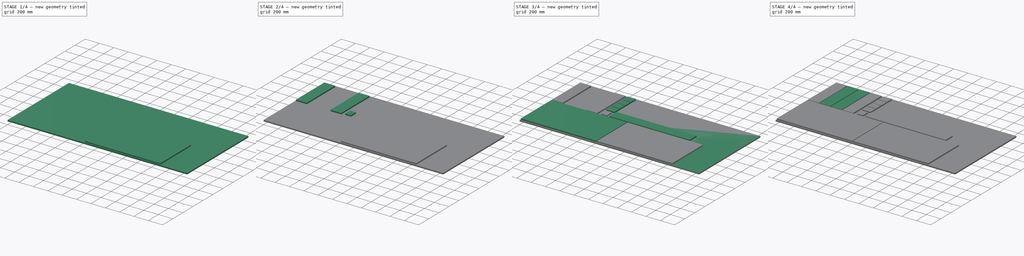
[diagram: build sequence overview — one tinted view per stage of 4, left to right]
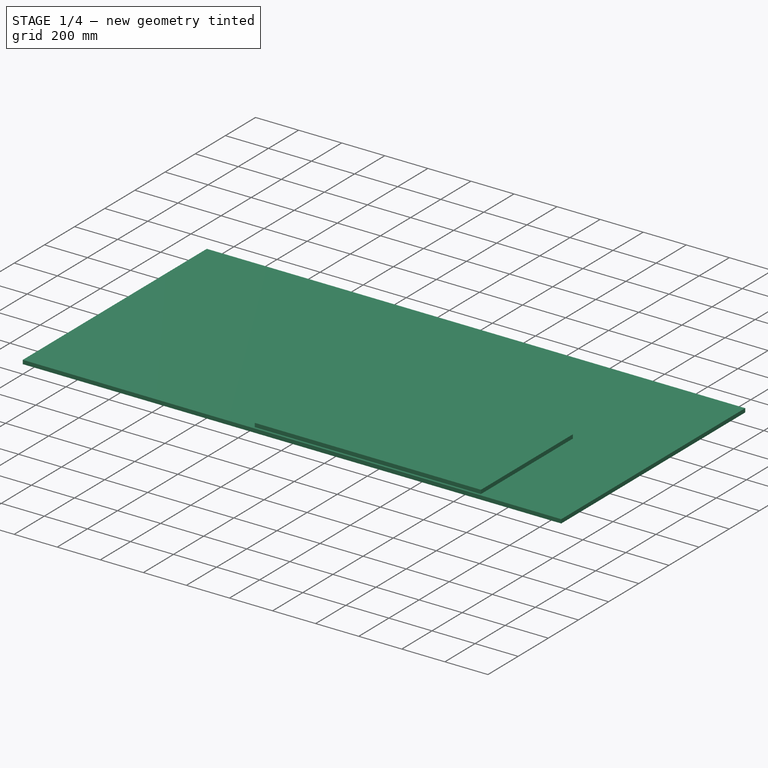
[diagram: stage 1 of 4 — iso view after this stage's code; geometry added in this stage tinted green]
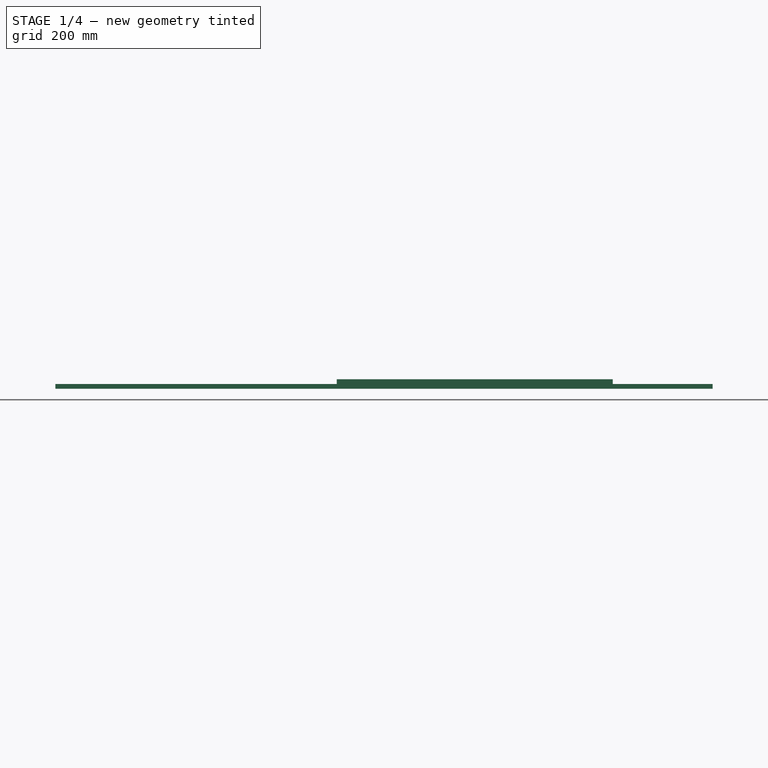
[diagram: stage 1 of 4 — front view after this stage's code; geometry added in this stage tinted green]
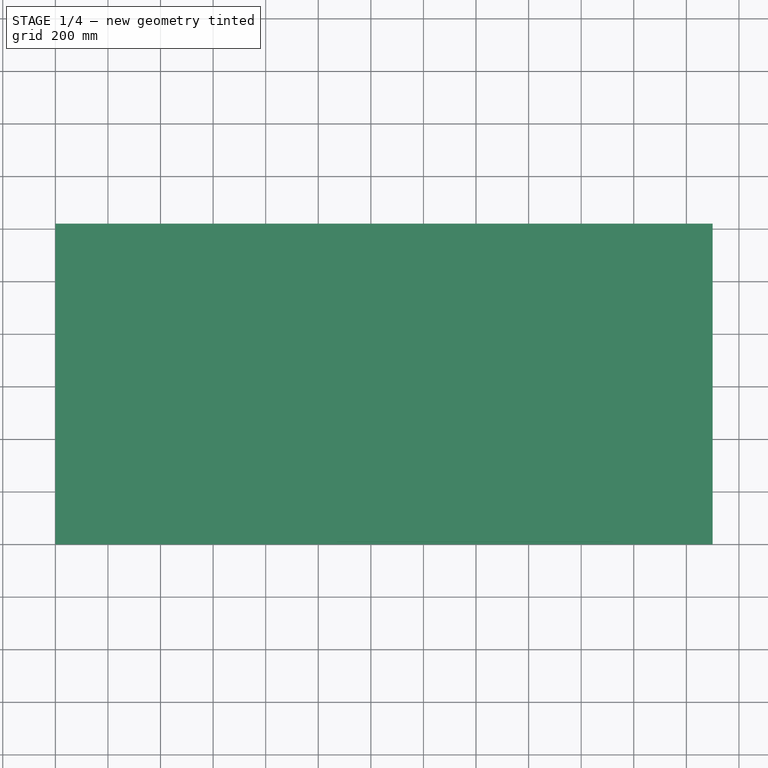
[diagram: stage 1 of 4 — top view after this stage's code; geometry added in this stage tinted green]
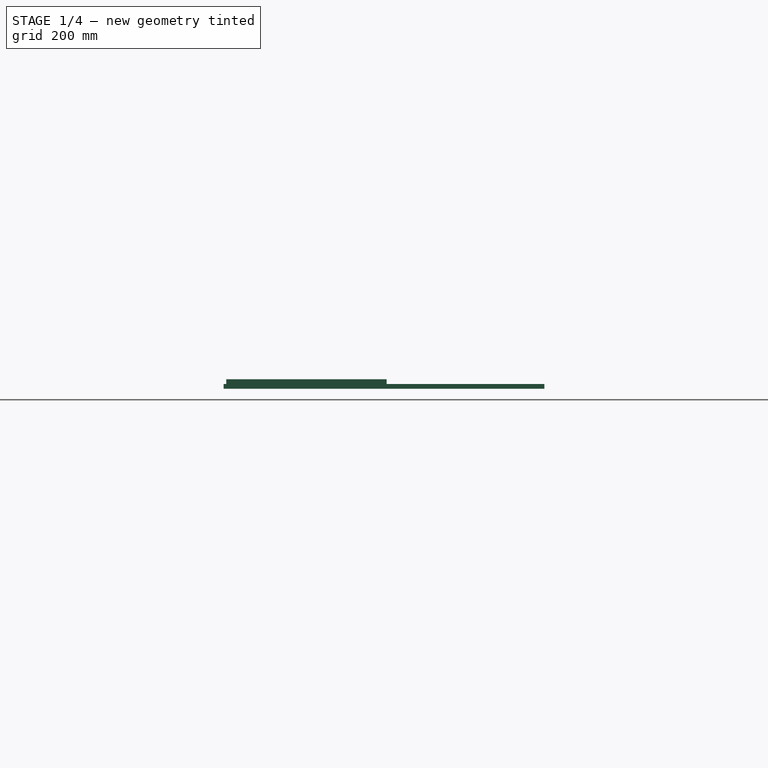
[diagram: stage 1 of 4 — right view after this stage's code; geometry added in this stage tinted green]
FCSTD DOCUMENT  (FreeCAD 0.16RUnknown)
Label: plaat_voor_freestafel
License: All rights reserved
LicenseURL: http://en.wikipedia.org/wiki/All_rights_reserved
objects: Sketcher::SketchObject×9, PartDesign::Pad×9, Part::Box×1
note: 28 computed .brp shape members not serialized (recipe doc carries the construction recipe); baked Part::Feature solids carry a one-line shape summary decoded from their .brp

FEATURE [Part::Box] Box  label="Plaat 18mm (153x310)"
  Height = 18
  Length = 2500
  Width = 1220
FEATURE [Sketcher::SketchObject] Sketch
  Placement = pos=(0,0,18) rot=(0,0,1;0rad)
  Support = -> Box [Face6]
  sketch-geometry (4):
    g0: LineSegment StartX=10 StartY=620 StartZ=0 EndX=1060 EndY=620 EndZ=0
    g1: LineSegment StartX=1060 StartY=620 StartZ=0 EndX=1060 EndY=10 EndZ=0
    g2: LineSegment StartX=1060 StartY=10 StartZ=0 EndX=10 EndY=10 EndZ=0
    g3: LineSegment StartX=10 StartY=10 StartZ=0 EndX=10 EndY=620 EndZ=0
  constraints (12):
    c: Coincident(g0,g1)
    c: Coincident(g1,g2)
    c: Coincident(g2,g3)
    c: Coincident(g3,g0)
    c: Horizontal(g0)
    c: Horizontal(g2)
    c: Vertical(g1)
    c: Vertical(g3)
    c: DistanceX(g0,g0) = 1050
    c: DistanceY(g3,g3) = 610
    c: DistanceY(g-1,g2) = 10
    c: DistanceX(g-1,g2) = 10
FEATURE [Sketcher::SketchObject] Sketch002
  Placement = pos=(0,0,18) rot=(0,0,1;0rad)
  Support = -> Box [Face6]
  sketch-geometry (4):
    g0: LineSegment StartX=1070.09 StartY=620 StartZ=0 EndX=2120.09 EndY=620 EndZ=0
    g1: LineSegment StartX=2120.09 StartY=620 StartZ=0 EndX=2120.09 EndY=10 EndZ=0
    g2: LineSegment StartX=2120.09 StartY=10 StartZ=0 EndX=1070.09 EndY=10 EndZ=0
    g3: LineSegment StartX=1070.09 StartY=10 StartZ=0 EndX=1070.09 EndY=620 EndZ=0
  constraints (11):
    c: Coincident(g0,g1)
    c: Coincident(g1,g2)
    c: Coincident(g2,g3)
    c: Coincident(g3,g0)
    c: Horizontal(g0)
    c: Horizontal(g2)
    c: Vertical(g1)
    c: Vertical(g3)
    c: DistanceX(g0,g0) = 1050
    c: DistanceY(g3,g3) = 610
    c: DistanceY(g-1,g2) = 10
FEATURE [PartDesign::Pad] Pad  label="Kernplaat 1"
  Length = 18
  Length2 = 100
  Sketch = -> Sketch002
  Type = 0
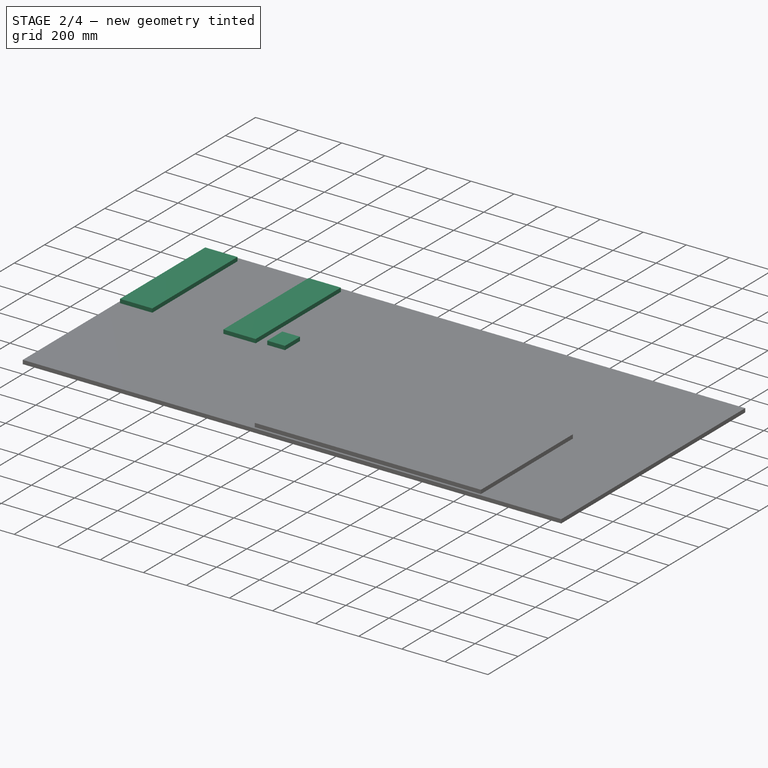
[diagram: stage 2 of 4 — iso view after this stage's code; geometry added in this stage tinted green]
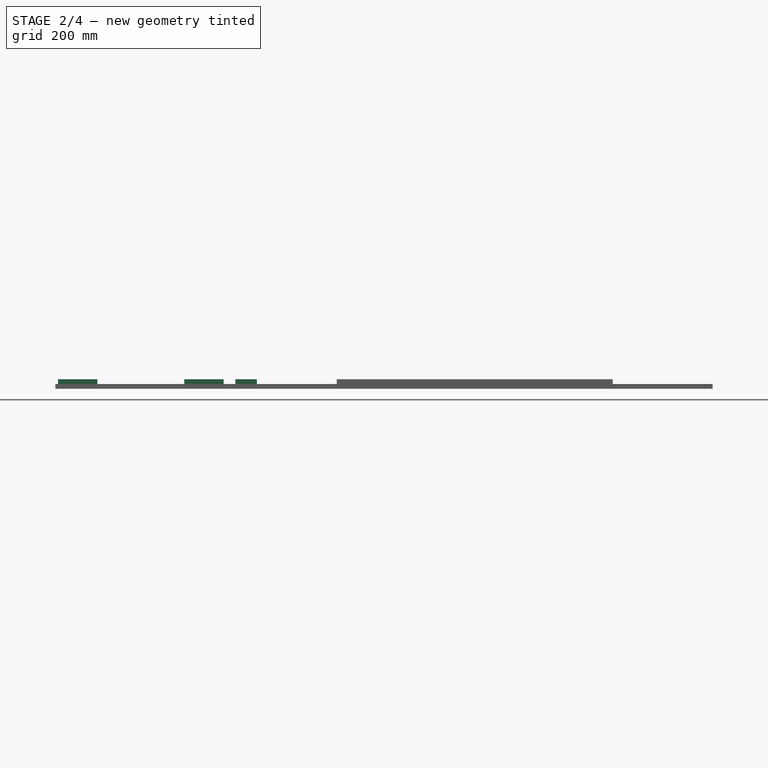
[diagram: stage 2 of 4 — front view after this stage's code; geometry added in this stage tinted green]
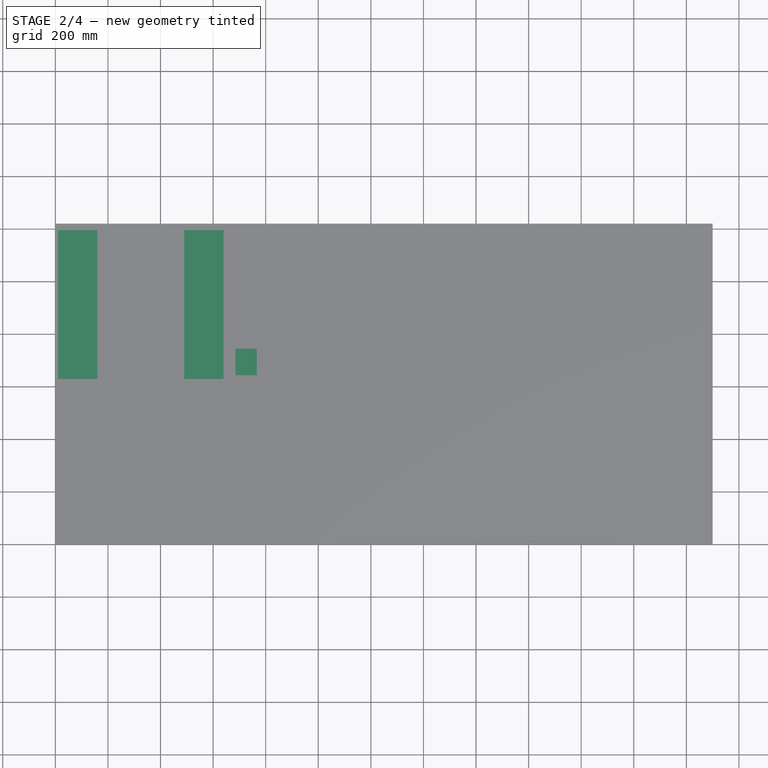
[diagram: stage 2 of 4 — top view after this stage's code; geometry added in this stage tinted green]
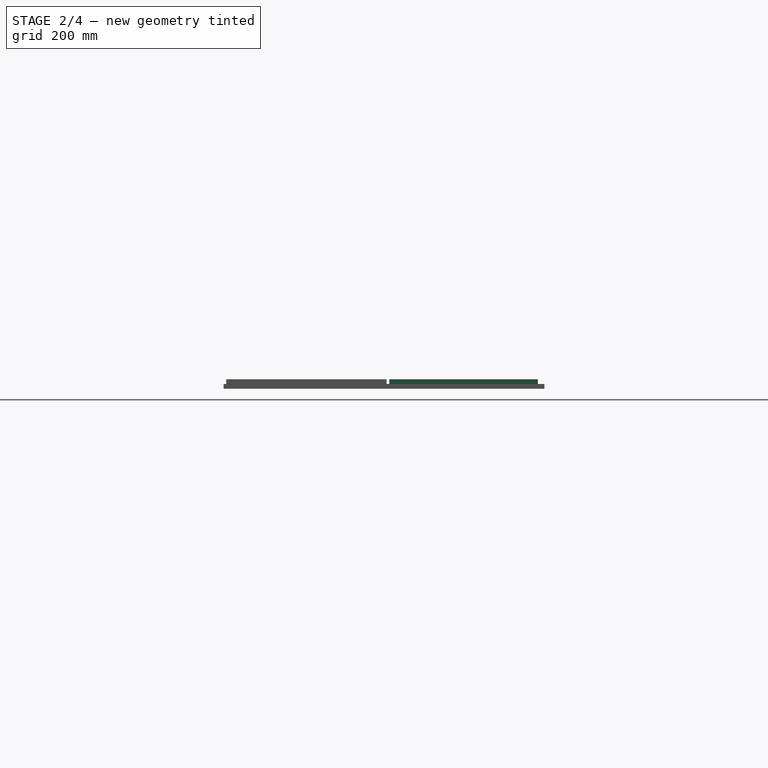
[diagram: stage 2 of 4 — right view after this stage's code; geometry added in this stage tinted green]
FEATURE [Sketcher::SketchObject] Sketch003  label="Anschlagbacken 1"
  Placement = pos=(0,0,18) rot=(0,0,1;0rad)
  Support = -> Pad [Face3]
  sketch-geometry (4):
    g0: LineSegment StartX=10 StartY=1195.19 StartZ=0 EndX=160 EndY=1195.19 EndZ=0
    g1: LineSegment StartX=160 StartY=1195.19 StartZ=0 EndX=160 EndY=630.189 EndZ=0
    g2: LineSegment StartX=160 StartY=630.189 StartZ=0 EndX=10 EndY=630.189 EndZ=0
    g3: LineSegment StartX=10 StartY=630.189 StartZ=0 EndX=10 EndY=1195.19 EndZ=0
  constraints (11):
    c: Coincident(g0,g1)
    c: Coincident(g1,g2)
    c: Coincident(g2,g3)
    c: Coincident(g3,g0)
    c: Horizontal(g0)
    c: Horizontal(g2)
    c: Vertical(g1)
    c: Vertical(g3)
    c: DistanceX(g-1,g2) = 10
    c: DistanceX(g2,g2) = 150
    c: DistanceY(g3,g3) = 565
FEATURE [Sketcher::SketchObject] Sketch006  label="Anschlagbacken 4"
  Placement = pos=(0,0,18) rot=(0,0,1;0rad)
  Support = -> Pad [Face3]
  sketch-geometry (4):
    g0: LineSegment StartX=490.018 StartY=1194.99 StartZ=0 EndX=640.018 EndY=1194.99 EndZ=0
    g1: LineSegment StartX=640.018 StartY=1194.99 StartZ=0 EndX=640.018 EndY=629.991 EndZ=0
    g2: LineSegment StartX=640.018 StartY=629.991 StartZ=0 EndX=490.018 EndY=629.991 EndZ=0
    g3: LineSegment StartX=490.018 StartY=629.991 StartZ=0 EndX=490.018 EndY=1194.99 EndZ=0
  constraints (10):
    c: Coincident(g0,g1)
    c: Coincident(g1,g2)
    c: Coincident(g2,g3)
    c: Coincident(g3,g0)
    c: Horizontal(g0)
    c: Horizontal(g2)
    c: Vertical(g1)
    c: Vertical(g3)
    c: DistanceX(g2,g2) = 150
    c: DistanceY(g3,g3) = 565
FEATURE [Sketcher::SketchObject] Sketch005  label="Anschlagbacken 3"
  Placement = pos=(0,0,18) rot=(0,0,1;0rad)
  Support = -> Pad [Face3]
  sketch-geometry (4):
    g0: LineSegment StartX=330.037 StartY=1195 StartZ=0 EndX=480.037 EndY=1195 EndZ=0
    g1: LineSegment StartX=480.037 StartY=1195 StartZ=0 EndX=480.037 EndY=630.004 EndZ=0
    g2: LineSegment StartX=480.037 StartY=630.004 StartZ=0 EndX=330.037 EndY=630.004 EndZ=0
    g3: LineSegment StartX=330.037 StartY=630.004 StartZ=0 EndX=330.037 EndY=1195 EndZ=0
  constraints (10):
    c: Coincident(g0,g1)
    c: Coincident(g1,g2)
    c: Coincident(g2,g3)
    c: Coincident(g3,g0)
    c: Horizontal(g0)
    c: Horizontal(g2)
    c: Vertical(g1)
    c: Vertical(g3)
    c: DistanceX(g2,g2) = 150
    c: DistanceY(g3,g3) = 565
FEATURE [Sketcher::SketchObject] Sketch004  label="Anschlagbacken 2"
  Placement = pos=(0,0,18) rot=(0,0,1;0rad)
  Support = -> Pad [Face3]
  sketch-geometry (4):
    g0: LineSegment StartX=170 StartY=1195 StartZ=0 EndX=320 EndY=1195 EndZ=0
    g1: LineSegment StartX=320 StartY=1195 StartZ=0 EndX=320 EndY=629.996 EndZ=0
    g2: LineSegment StartX=320 StartY=629.996 StartZ=0 EndX=170 EndY=629.996 EndZ=0
    g3: LineSegment StartX=170 StartY=629.996 StartZ=0 EndX=170 EndY=1195 EndZ=0
  constraints (10):
    c: Coincident(g0,g1)
    c: Coincident(g1,g2)
    c: Coincident(g2,g3)
    c: Coincident(g3,g0)
    c: Horizontal(g0)
    c: Horizontal(g2)
    c: Vertical(g1)
    c: Vertical(g3)
    c: DistanceX(g2,g2) = 150
    c: DistanceY(g3,g3) = 565
FEATURE [PartDesign::Pad] Pad002  label="Aanslag 1"
  Length = 18
  Length2 = 100
  Sketch = -> Sketch003
  Type = 0
FEATURE [PartDesign::Pad] Pad003  label="Aanslag 2"
  Length = 18
  Length2 = 100
  Sketch = -> Sketch006
  Type = 0
FEATURE [Sketcher::SketchObject] Sketch010
  Placement = pos=(0,0,18) rot=(0,0,1;0rad)
  Support = -> Pad003 [Face3]
  sketch-geometry (4):
    g0: LineSegment StartX=684.507 StartY=743.577 StartZ=0 EndX=766.507 EndY=743.577 EndZ=0
    g1: LineSegment StartX=766.507 StartY=743.577 StartZ=0 EndX=766.507 EndY=643.577 EndZ=0
    g2: LineSegment StartX=766.507 StartY=643.577 StartZ=0 EndX=684.507 EndY=643.577 EndZ=0
    g3: LineSegment StartX=684.507 StartY=643.577 StartZ=0 EndX=684.507 EndY=743.577 EndZ=0
  constraints (10):
    c: Coincident(g0,g1)
    c: Coincident(g1,g2)
    c: Coincident(g2,g3)
    c: Coincident(g3,g0)
    c: Horizontal(g0)
    c: Horizontal(g2)
    c: Vertical(g1)
    c: Vertical(g3)
    c: DistanceY(g3,g3) = 100
    c: DistanceX(g2,g2) = 82
FEATURE [PartDesign::Pad] Pad008
  Length = 18
  Length2 = 100
  Sketch = -> Sketch010
  Type = 0
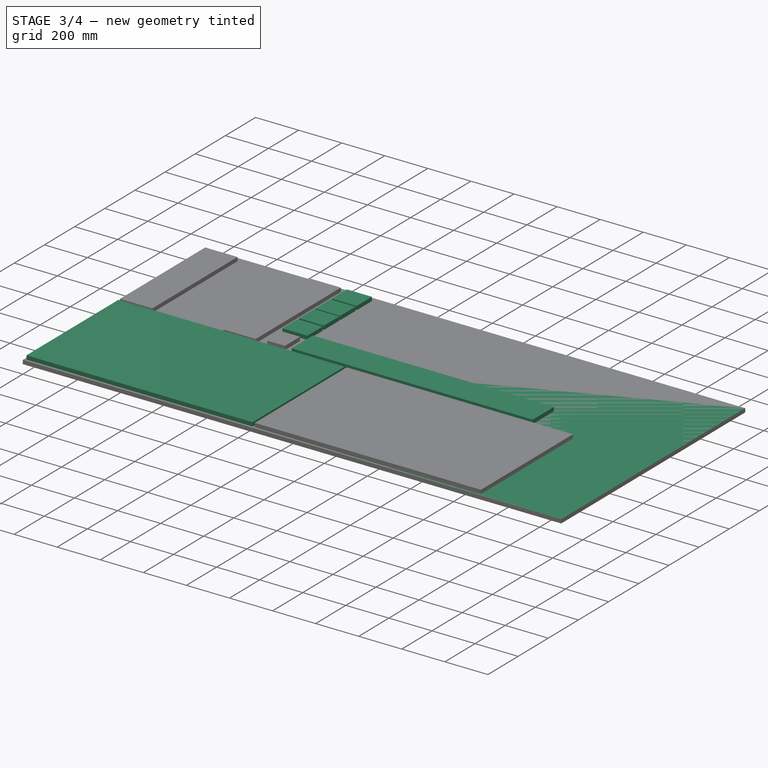
[diagram: stage 3 of 4 — iso view after this stage's code; geometry added in this stage tinted green]
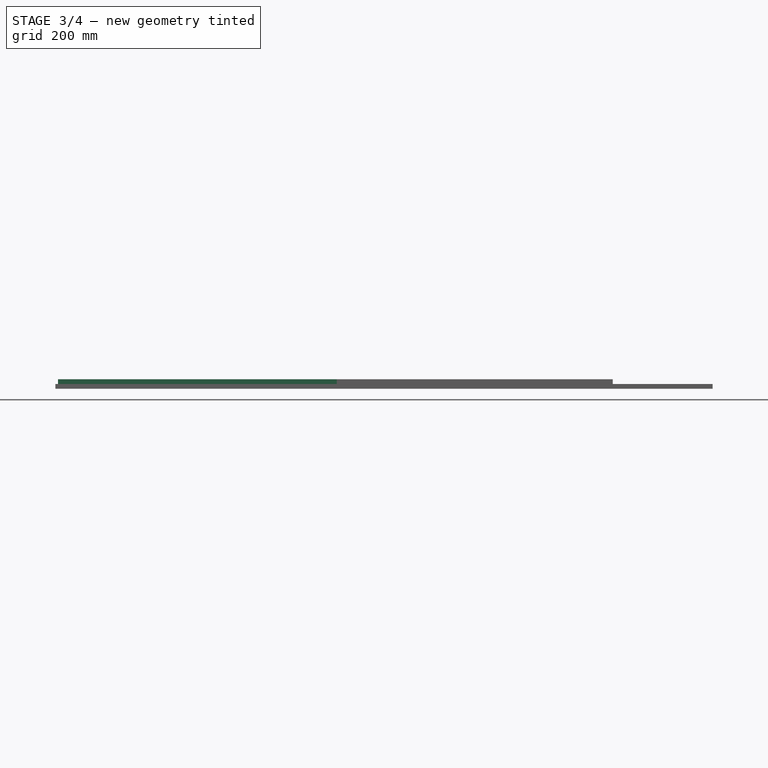
[diagram: stage 3 of 4 — front view after this stage's code; geometry added in this stage tinted green]
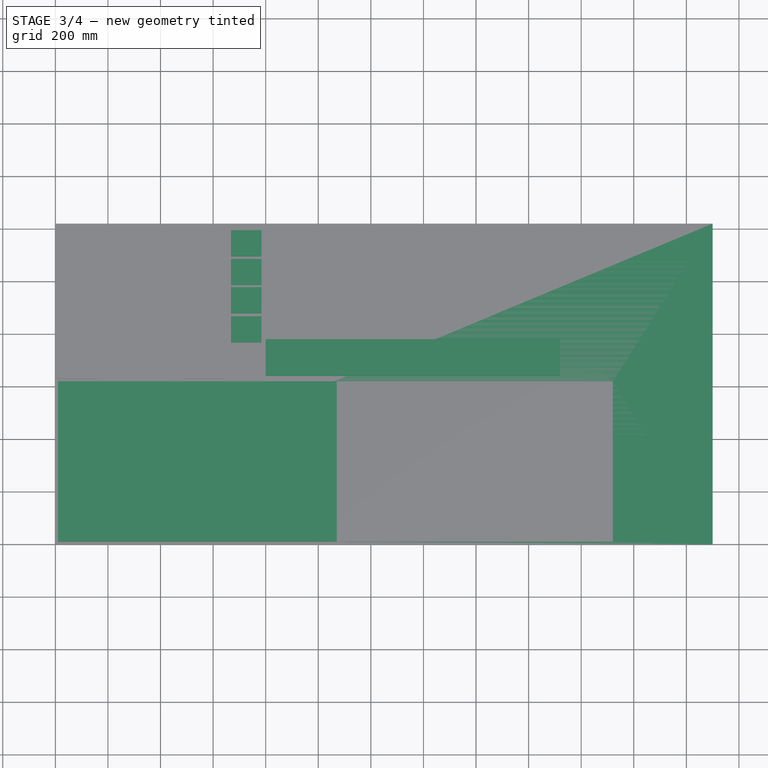
[diagram: stage 3 of 4 — top view after this stage's code; geometry added in this stage tinted green]
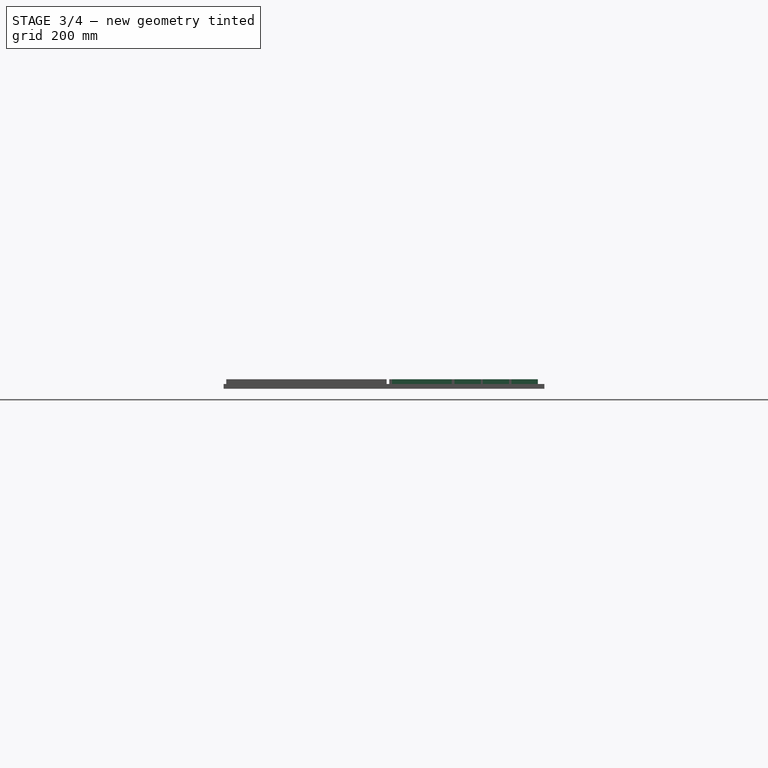
[diagram: stage 3 of 4 — right view after this stage's code; geometry added in this stage tinted green]
FEATURE [PartDesign::Pad] Pad001  label="Kernplaat 2"
  Length = 18
  Length2 = 100
  Sketch = -> Sketch
  Type = 0
FEATURE [Sketcher::SketchObject] Sketch007
  Placement = pos=(0,0,18) rot=(0,0,1;0rad)
  Support = -> Pad001 [Face3]
  sketch-geometry (16):
    g0: LineSegment StartX=667.975 StartY=1195 StartZ=0 EndX=783.975 EndY=1195 EndZ=0
    g1: LineSegment StartX=783.975 StartY=1195 StartZ=0 EndX=783.975 EndY=1095 EndZ=0
    g2: LineSegment StartX=783.975 StartY=1095 StartZ=0 EndX=667.975 EndY=1095 EndZ=0
    g3: LineSegment StartX=667.975 StartY=1095 StartZ=0 EndX=667.975 EndY=1195 EndZ=0
    g4: LineSegment StartX=667.975 StartY=1085.48 StartZ=0 EndX=783.975 EndY=1085.48 EndZ=0
    g5: LineSegment StartX=783.975 StartY=1085.48 StartZ=0 EndX=783.975 EndY=985.482 EndZ=0
    g6: LineSegment StartX=783.975 StartY=985.482 StartZ=0 EndX=667.975 EndY=985.482 EndZ=0
    g7: LineSegment StartX=667.975 StartY=985.482 StartZ=0 EndX=667.975 EndY=1085.48 EndZ=0
    g8: LineSegment StartX=667.975 StartY=867.496 StartZ=0 EndX=783.975 EndY=867.496 EndZ=0
    g9: LineSegment StartX=783.975 StartY=867.496 StartZ=0 EndX=783.975 EndY=767.496 EndZ=0
    g10: LineSegment StartX=783.975 StartY=767.496 StartZ=0 EndX=667.975 EndY=767.496 EndZ=0
    g11: LineSegment StartX=667.975 StartY=767.496 StartZ=0 EndX=667.975 EndY=867.496 EndZ=0
    g12: LineSegment StartX=667.975 StartY=978.25 StartZ=0 EndX=783.975 EndY=978.25 EndZ=0
    g13: LineSegment StartX=783.975 StartY=978.25 StartZ=0 EndX=783.975 EndY=878.25 EndZ=0
    g14: LineSegment StartX=783.975 StartY=878.25 StartZ=0 EndX=667.975 EndY=878.25 EndZ=0
    g15: LineSegment StartX=667.975 StartY=878.25 StartZ=0 EndX=667.975 EndY=978.25 EndZ=0
  constraints (43):
    c: Coincident(g0,g1)
    c: Coincident(g1,g2)
    c: Coincident(g2,g3)
    c: Coincident(g3,g0)
    c: Horizontal(g0)
    c: Horizontal(g2)
    c: Vertical(g1)
    c: Vertical(g3)
    c: DistanceY(g3,g3) = 100
    c: DistanceX(g0,g0) = 116
    c: Coincident(g4,g5)
    c: Coincident(g5,g6)
    c: Coincident(g6,g7)
    c: Coincident(g7,g4)
    c: Horizontal(g4)
    c: Horizontal(g6)
    c: Vertical(g5)
    c: Vertical(g7)
    c: Equal(g3,g7) = 100
    c: Equal(g0,g4) = 116
    c: PointOnObject(g7,g3)
    c: Coincident(g8,g9)
    c: Coincident(g9,g10)
    c: Coincident(g10,g11)
    c: Coincident(g11,g8)
    c: Horizontal(g8)
    c: Horizontal(g10)
    c: Vertical(g9)
    c: Vertical(g11)
    c: Equal(g3,g11) = 100
    c: Equal(g0,g8) = 116
    c: Coincident(g12,g13)
    c: Coincident(g13,g14)
    c: Coincident(g14,g15)
    c: Coincident(g15,g12)
    c: Horizontal(g12)
    c: Horizontal(g14)
    c: Vertical(g13)
    c: Vertical(g15)
    c: Equal(g11,g15) = 100
    c: Equal(g8,g12) = 116
    c: PointOnObject(g15,g11)
    c: PointOnObject(g15,g7)
FEATURE [PartDesign::Pad] Pad006
  Length = 18
  Length2 = 100
  Sketch = -> Sketch007
  Type = 0
FEATURE [Sketcher::SketchObject] Sketch009
  Placement = pos=(0,0,18) rot=(0,0,1;0rad)
  Support = -> Pad002 [Face3]
  sketch-geometry (4):
    g0: LineSegment StartX=799.729 StartY=780.37 StartZ=0 EndX=1919.73 EndY=780.37 EndZ=0
    g1: LineSegment StartX=1919.73 StartY=780.37 StartZ=0 EndX=1919.73 EndY=640.37 EndZ=0
    g2: LineSegment StartX=1919.73 StartY=640.37 StartZ=0 EndX=799.729 EndY=640.37 EndZ=0
    g3: LineSegment StartX=799.729 StartY=640.37 StartZ=0 EndX=799.729 EndY=780.37 EndZ=0
  constraints (10):
    c: Coincident(g0,g1)
    c: Coincident(g1,g2)
    c: Coincident(g2,g3)
    c: Coincident(g3,g0)
    c: Horizontal(g0)
    c: Horizontal(g2)
    c: Vertical(g1)
    c: Vertical(g3)
    c: DistanceY(g3,g3) = 140
    c: DistanceX(g2,g2) = 1120
FEATURE [PartDesign::Pad] Pad007
  Length = 18
  Length2 = 100
  Sketch = -> Sketch009
  Type = 0
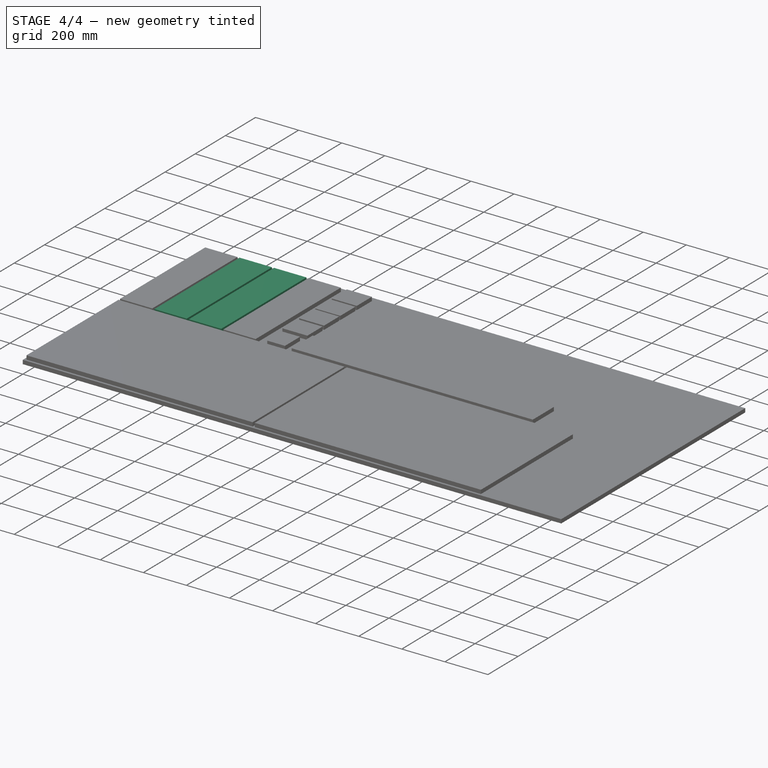
[diagram: stage 4 of 4 — iso view after this stage's code; geometry added in this stage tinted green]
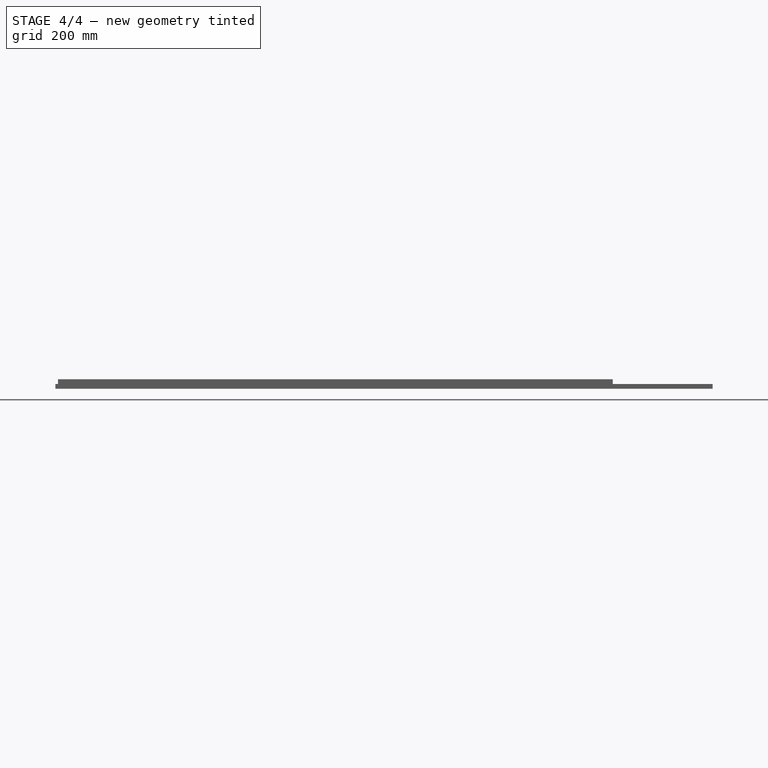
[diagram: stage 4 of 4 — front view after this stage's code; geometry added in this stage tinted green]
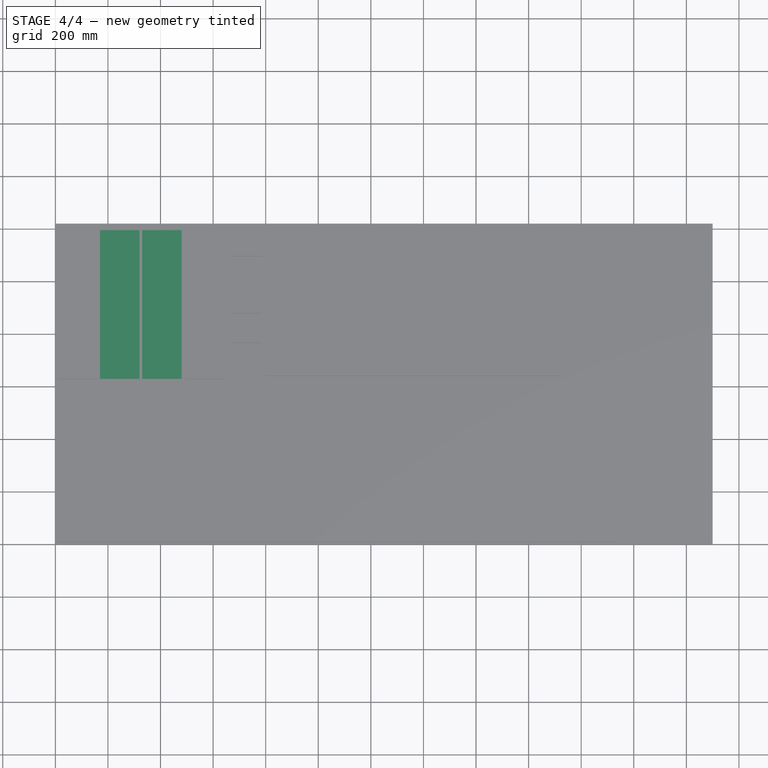
[diagram: stage 4 of 4 — top view after this stage's code; geometry added in this stage tinted green]
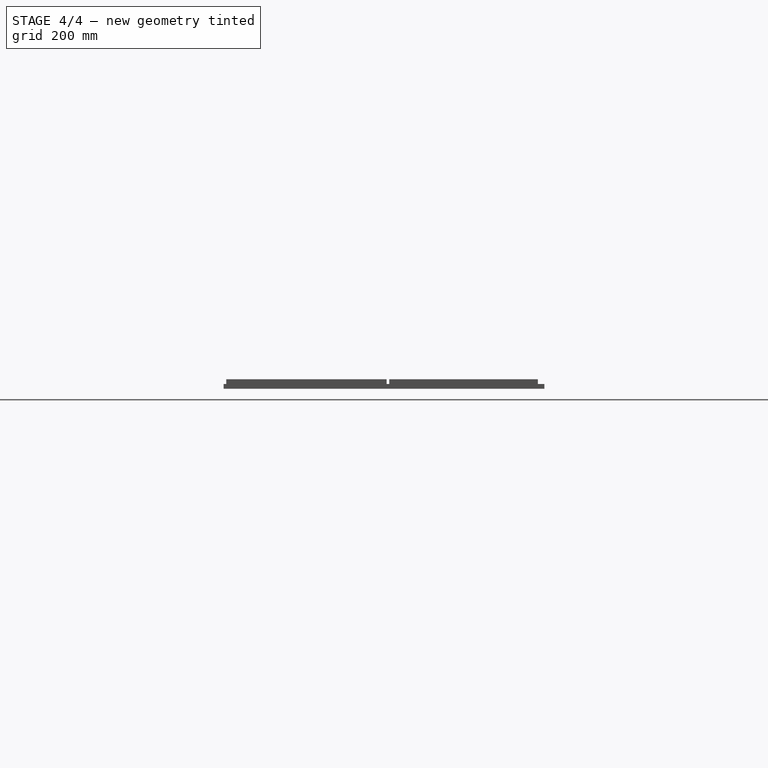
[diagram: stage 4 of 4 — right view after this stage's code; geometry added in this stage tinted green]
FEATURE [PartDesign::Pad] Pad004  label="Aanslag 3"
  Length = 18
  Length2 = 100
  Sketch = -> Sketch005
  Type = 0
FEATURE [PartDesign::Pad] Pad005  label="Aanslag 4"
  Length = 18
  Length2 = 100
  Sketch = -> Sketch004
  Type = 0
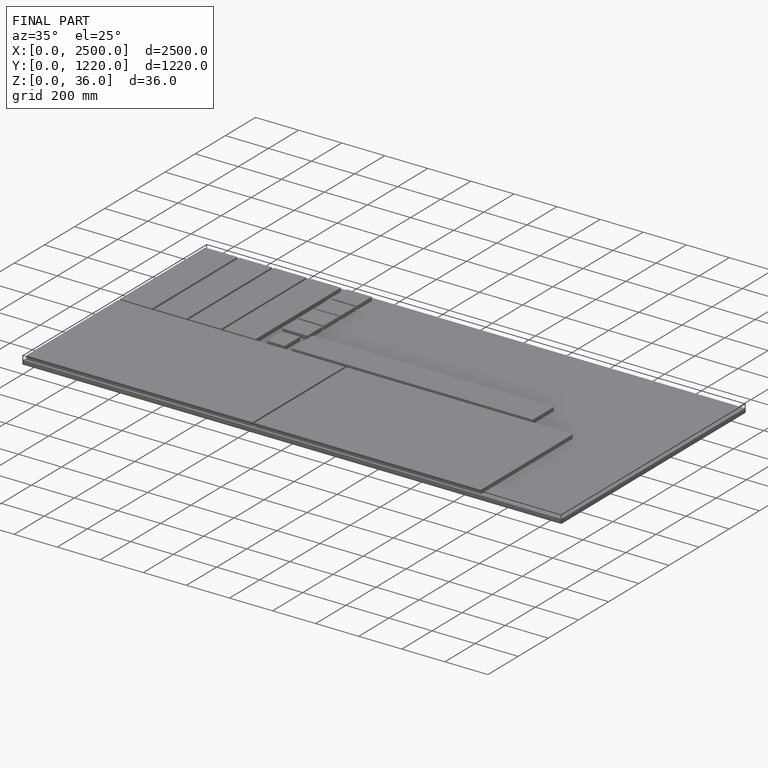
[diagram: finished part — iso view with bounding-box wireframe]
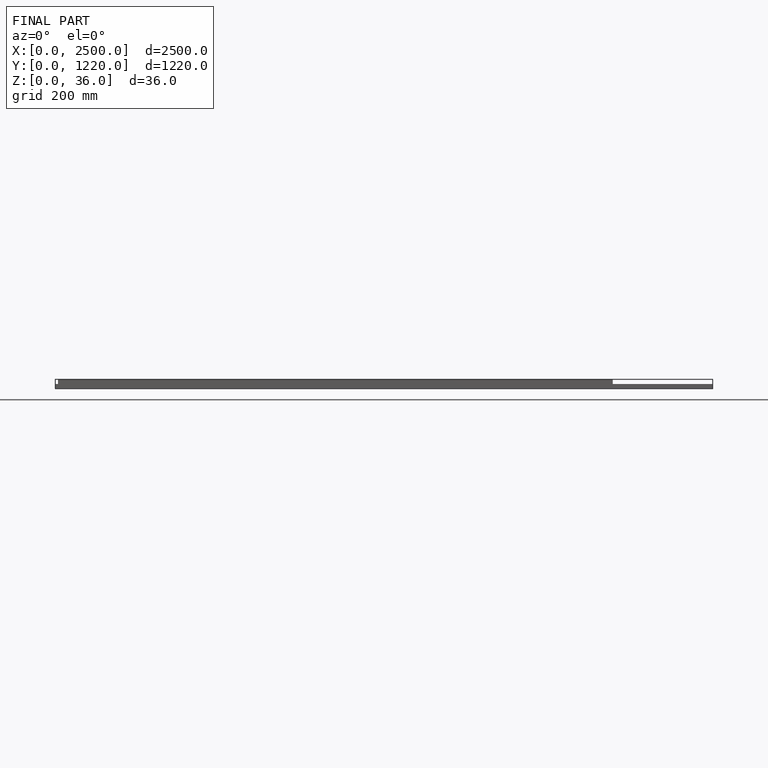
[diagram: finished part — front view with bounding-box wireframe]
